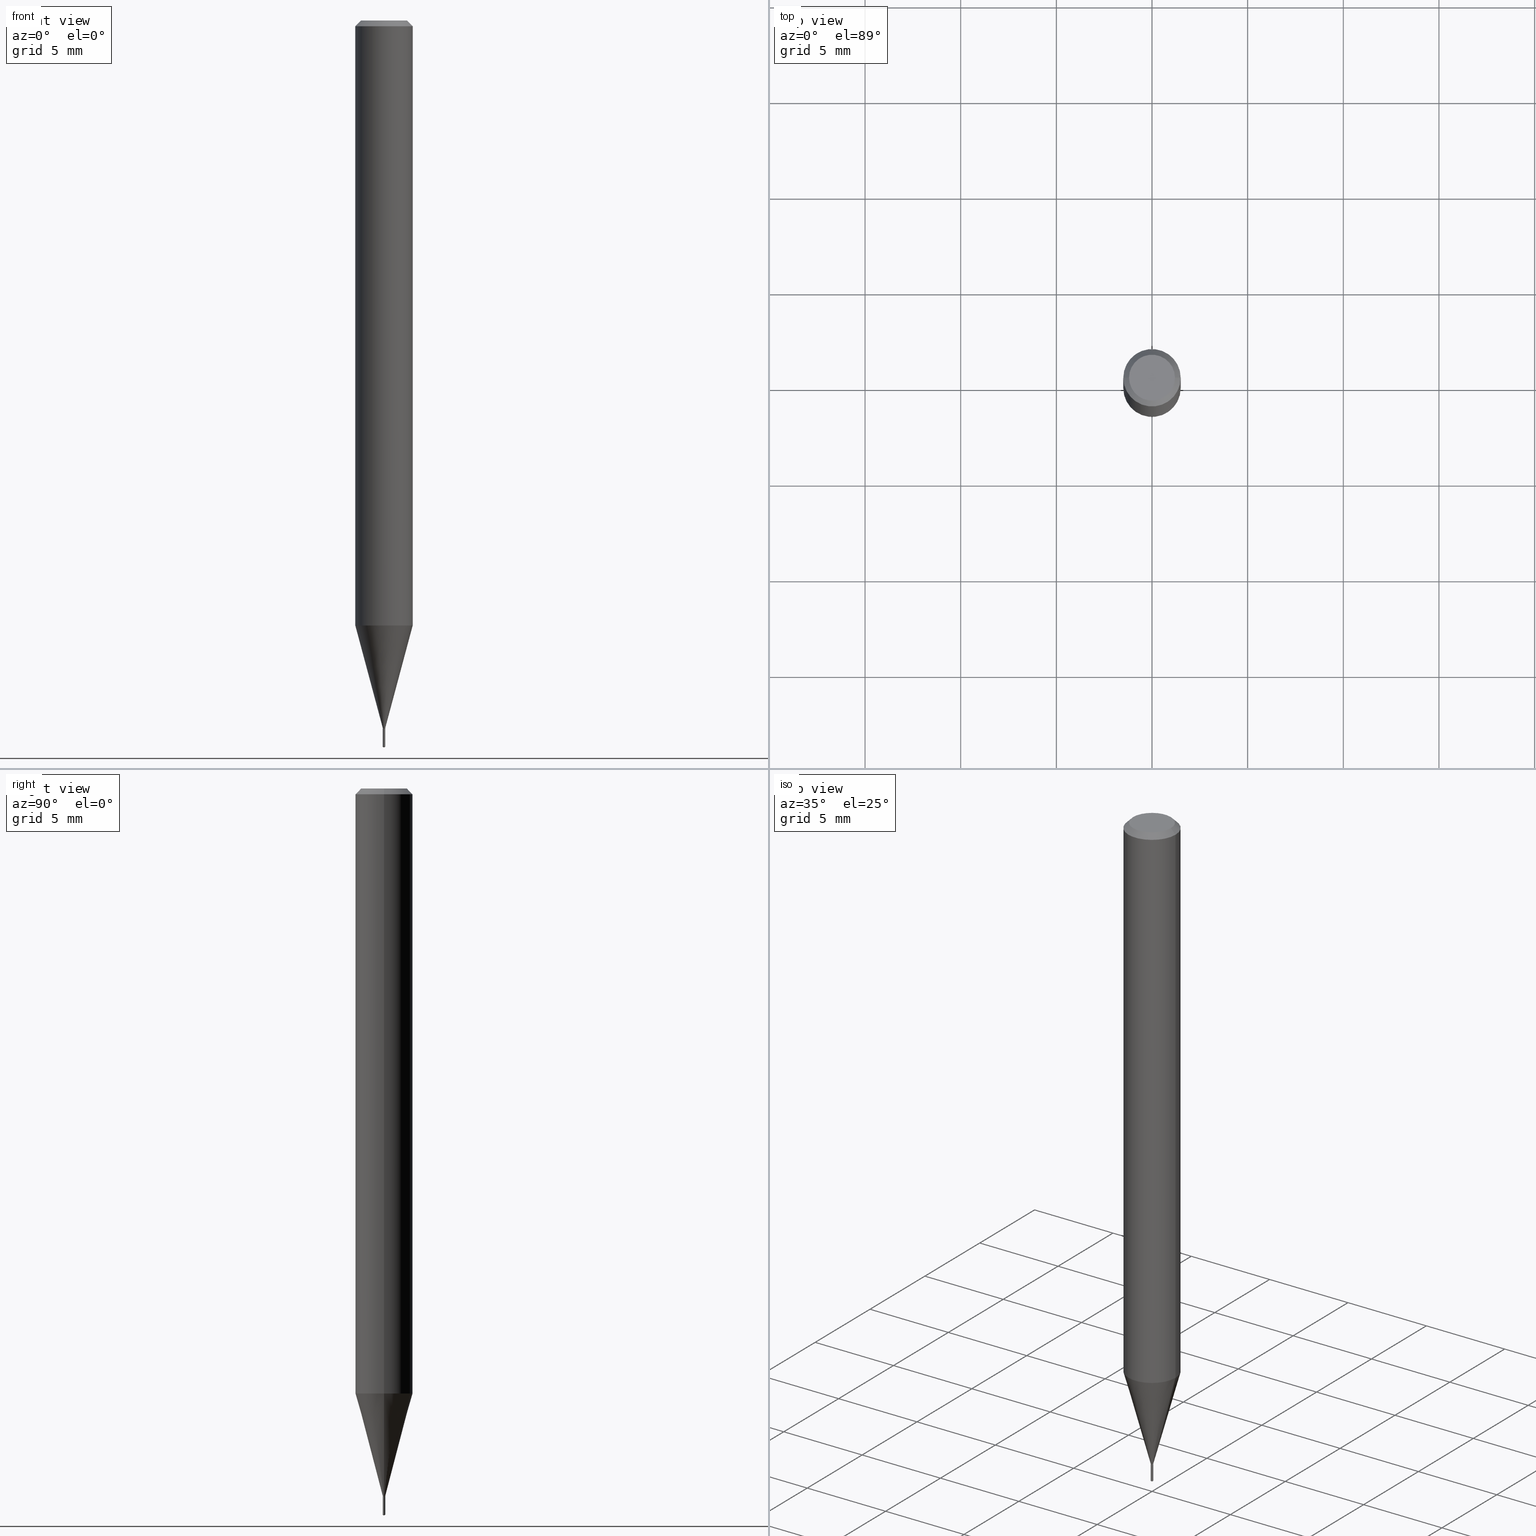
[diagram: canonical four-view strip — front | top / right | iso, engineering-drawing reading convention]
A machine part, canonical four-view strip (front | top / right | iso — engineering-drawing reading convention). The complete STEP part file that produces these views, byte-faithful:
ISO-10303-21;
HEADER;
FILE_DESCRIPTION (( 'STEP AP203' ),
    '1' );
FILE_NAME ('07732.STEP',
    '2024-04-24T01:53:04',
    ( '' ),
    ( '' ),
    'SwSTEP 2.0',
    'SolidWorks 2023',
    '' );
FILE_SCHEMA (( 'CONFIG_CONTROL_DESIGN' ));
ENDSEC;

DATA;
#1 = DIRECTION ( 'NONE',  ( -2.445468806185136597E-29, 3.491481338843145583E-15, 1.000000000000000000 ) ) ;
#2 = LINE ( 'NONE', #118, #388 ) ;
#3 = APPLICATION_CONTEXT ( 'configuration controlled 3d designs of mechanical parts and assemblies' ) ;
#4 = CARTESIAN_POINT ( 'NONE',  ( 1.811883976191911173E-17, 0.002549999999994782569, -1.494567805421479711 ) ) ;
#5 = ORIENTED_EDGE ( 'NONE', *, *, #488, .T. ) ;
#6 = CARTESIAN_POINT ( 'NONE',  ( -0.04724000000000000421, 3.504923541997677355E-16, -3.380025165670481712E-19 ) ) ;
#7 = AXIS2_PLACEMENT_3D ( 'NONE', #350, #198, #418 ) ;
#8 = CARTESIAN_POINT ( 'NONE',  ( 8.265746106709734507E-48, -1.180129479067563789E-33, -3.380025165646692144E-19 ) ) ;
#9 = EDGE_LOOP ( 'NONE', ( #239, #5, #415, #227 ) ) ;
#10 = DIRECTION ( 'NONE',  ( 1.000000000000000000, -6.982962677686274599E-15, 0.000000000000000000 ) ) ;
#11 = CARTESIAN_POINT ( 'NONE',  ( 0.002550000000000000183, -1.780655482809998043E-17, 1.243425077827963851E-31 ) ) ;
#12 = CARTESIAN_POINT ( 'NONE',  ( 3.560358034924940320E-29, -5.083247681221735251E-15, -1.455899999999999972 ) ) ;
#13 = AXIS2_PLACEMENT_3D ( 'NONE', #272, #275, #413 ) ;
#14 = CC_DESIGN_APPROVAL ( #107, ( #142 ) ) ;
#15 = EDGE_CURVE ( 'NONE', #244, #190, #345, .T. ) ;
#16 = SHAPE_DEFINITION_REPRESENTATION ( #309, #67 ) ;
#17 = DIRECTION ( 'NONE',  ( 6.090539988449873099E-15, 0.8571673007021272106, 0.5150380749100293976 ) ) ;
#18 = CC_DESIGN_PERSON_AND_ORGANIZATION_ASSIGNMENT ( #212, #140, ( #79 ) ) ;
#19 = APPROVAL_ROLE ( '' ) ;
#20 = PERSON_AND_ORGANIZATION ( #411, #170 ) ;
#21 = APPROVAL_DATE_TIME ( #135, #220 ) ;
#22 = DATE_TIME_ROLE ( 'classification_date' ) ;
#23 = APPLICATION_CONTEXT ( 'configuration controlled 3d designs of mechanical parts and assemblies' ) ;
#24 = AXIS2_PLACEMENT_3D ( 'NONE', #226, #343, #374 ) ;
#25 = AXIS2_PLACEMENT_3D ( 'NONE', #49, #206, #329 ) ;
#26 = DIRECTION ( 'NONE',  ( -2.445367826674842379E-29, 3.491625947249283675E-15, 1.000000000000000000 ) ) ;
#27 = CC_DESIGN_PERSON_AND_ORGANIZATION_ASSIGNMENT ( #264, #101, ( #142 ) ) ;
#28 = DIRECTION ( 'NONE',  ( 2.445468806185136597E-29, -3.491481338843145583E-15, -1.000000000000000000 ) ) ;
#29 = UNCERTAINTY_MEASURE_WITH_UNIT (LENGTH_MEASURE( 1.000000000000000082E-05 ), #47, 'distance_accuracy_value', 'NONE');
#30 = VERTEX_POINT ( 'NONE', #443 ) ;
#31 = LINE ( 'NONE', #11, #261 ) ;
#32 = FACE_OUTER_BOUND ( 'NONE', #308, .T. ) ;
#33 = EDGE_LOOP ( 'NONE', ( #213, #301 ) ) ;
#34 = CONICAL_SURFACE ( 'NONE', #209, 0.002050000000000000173, 0.7853981633975491983 ) ;
#35 = AXIS2_PLACEMENT_3D ( 'NONE', #315, #122, #283 ) ;
#36 = VERTEX_POINT ( 'NONE', #414 ) ;
#37 = ORIENTED_EDGE ( 'NONE', *, *, #70, .F. ) ;
#38 = DIMENSIONAL_EXPONENTS ( 1.000000000000000000, 0.000000000000000000, 0.000000000000000000, 0.000000000000000000, 0.000000000000000000, 0.000000000000000000, 0.000000000000000000 ) ;
#39 = DIRECTION ( 'NONE',  ( -2.445468806185136597E-29, 3.491481338843145583E-15, 1.000000000000000000 ) ) ;
#40 = EDGE_LOOP ( 'NONE', ( #300, #490, #119, #86 ) ) ;
#41 = DIRECTION ( 'NONE',  ( -2.445468806185136597E-29, 3.491481338843145583E-15, 1.000000000000000000 ) ) ;
#42 = ADVANCED_FACE ( 'NONE', ( #228 ), #463, .T. ) ;
#43 = AXIS2_PLACEMENT_3D ( 'NONE', #448, #26, #185 ) ;
#44 = VECTOR ( 'NONE', #399, 39.37007874015748143 ) ;
#45 = DIRECTION ( 'NONE',  ( 0.2588190451025211836, 1.565188264969622559E-15, 0.9659258262890679791 ) ) ;
#46 = DIRECTION ( 'NONE',  ( 1.000000000000000000, -6.982962677686274599E-15, 0.000000000000000000 ) ) ;
#47 =( CONVERSION_BASED_UNIT ( 'INCH', #392 ) LENGTH_UNIT ( ) NAMED_UNIT ( #38 ) );
#48 = ORIENTED_EDGE ( 'NONE', *, *, #139, .T. ) ;
#49 = CARTESIAN_POINT ( 'NONE',  ( 3.560358034924940320E-29, -5.083247681221735251E-15, -1.455899999999999972 ) ) ;
#50 = DIRECTION ( 'NONE',  ( -1.000000000000000000, 6.982962677686265922E-15, -4.876176775795935793E-29 ) ) ;
#51 = CARTESIAN_POINT ( 'NONE',  ( 0.002550000000000000183, -5.101054236049835376E-15, -1.455899999999999972 ) ) ;
#52 = ORIENTED_EDGE ( 'NONE', *, *, #355, .F. ) ;
#53 = EDGE_CURVE ( 'NONE', #188, #380, #108, .T. ) ;
#54 = FACE_OUTER_BOUND ( 'NONE', #33, .T. ) ;
#55 = CARTESIAN_POINT ( 'NONE',  ( -1.780655482806435843E-17, -0.002550000000005086392, -1.456699999999999884 ) ) ;
#56 = CIRCLE ( 'NONE', #245, 0.002550000000000000183 ) ;
#57 = APPROVAL_ROLE ( '' ) ;
#58 = ADVANCED_FACE ( 'NONE', ( #231 ), #408, .T. ) ;
#59 = COORDINATED_UNIVERSAL_TIME_OFFSET ( 5, 0, .BEHIND. ) ;
#60 = AXIS2_PLACEMENT_3D ( 'NONE', #116, #398, #46 ) ;
#61 = CIRCLE ( 'NONE', #465, 0.002550000000000000183 ) ;
#62 = LOCAL_TIME ( 21, 53, 4.000000000000000000, #257 ) ;
#63 = APPROVAL_DATE_TIME ( #472, #115 ) ;
#64 = ORIENTED_EDGE ( 'NONE', *, *, #167, .F. ) ;
#65 = DIRECTION ( 'NONE',  ( -2.445468806185136597E-29, 3.491481338843145583E-15, 1.000000000000000000 ) ) ;
#66 = VECTOR ( 'NONE', #149, 39.37007874015748854 ) ;
#67 = ADVANCED_BREP_SHAPE_REPRESENTATION ( '07732', ( #249, #230, #162 ), #98 ) ;
#68 = ORIENTED_EDGE ( 'NONE', *, *, #354, .F. ) ;
#69 = EDGE_LOOP ( 'NONE', ( #333, #450 ) ) ;
#70 = EDGE_CURVE ( 'NONE', #71, #151, #424, .T. ) ;
#71 = VERTEX_POINT ( 'NONE', #237 ) ;
#72 = FACE_OUTER_BOUND ( 'NONE', #155, .T. ) ;
#73 = ORIENTED_EDGE ( 'NONE', *, *, #232, .F. ) ;
#74 = DIRECTION ( 'NONE',  ( -2.445367826674842379E-29, 3.491625947249283675E-15, 1.000000000000000000 ) ) ;
#75 = ADVANCED_FACE ( 'NONE', ( #195 ), #161, .T. ) ;
#76 = CARTESIAN_POINT ( 'NONE',  ( 0.002550000000000000183, -5.101054236049835376E-15, -1.455899999999999972 ) ) ;
#77 = ORIENTED_EDGE ( 'NONE', *, *, #410, .F. ) ;
#78 = CONICAL_SURFACE ( 'NONE', #235, 0.05904999999999999832, 0.7853981633974452814 ) ;
#79 = SECURITY_CLASSIFICATION ( '', '', #439 ) ;
#80 = CARTESIAN_POINT ( 'NONE',  ( 2.888098660104664204E-31, -4.123439461173780263E-17, -0.01181000000000007218 ) ) ;
#81 = DIRECTION ( 'NONE',  ( -2.445367826674842379E-29, 3.491625947249283675E-15, 1.000000000000000000 ) ) ;
#82 = EDGE_LOOP ( 'NONE', ( #279, #387, #144, #317 ) ) ;
#83 = CC_DESIGN_DATE_AND_TIME_ASSIGNMENT ( #369, #22, ( #79 ) ) ;
#84 = DIRECTION ( 'NONE',  ( 1.000000000000000000, -6.982962677686274599E-15, 0.000000000000000000 ) ) ;
#85 = DIRECTION ( 'NONE',  ( -2.445367826674842379E-29, 3.491625947249283675E-15, 1.000000000000000000 ) ) ;
#86 = ORIENTED_EDGE ( 'NONE', *, *, #136, .F. ) ;
#87 = CC_DESIGN_PERSON_AND_ORGANIZATION_ASSIGNMENT ( #366, #262, ( #319 ) ) ;
#88 = DIRECTION ( 'NONE',  ( -2.445468806185136877E-29, 3.491481338843145188E-15, 1.000000000000000000 ) ) ;
#89 = FACE_OUTER_BOUND ( 'NONE', #312, .T. ) ;
#90 = AXIS2_PLACEMENT_3D ( 'NONE', #287, #94, #467 ) ;
#91 = CC_DESIGN_APPROVAL ( #220, ( #79 ) ) ;
#92 = ORIENTED_EDGE ( 'NONE', *, *, #473, .T. ) ;
#93 = EDGE_CURVE ( 'NONE', #482, #188, #2, .T. ) ;
#94 = DIRECTION ( 'NONE',  ( -2.445367826674842379E-29, 3.491625947249283675E-15, 1.000000000000000000 ) ) ;
#95 = DIRECTION ( 'NONE',  ( -2.438088387897960049E-29, 3.491481338843145188E-15, 1.000000000000000000 ) ) ;
#96 = CARTESIAN_POINT ( 'NONE',  ( 0.002050000000000000173, -5.100355939782067564E-15, -1.456699999999999884 ) ) ;
#97 = CIRCLE ( 'NONE', #476, 0.002050000000000000173 ) ;
#98 =( GEOMETRIC_REPRESENTATION_CONTEXT ( 3 ) GLOBAL_UNCERTAINTY_ASSIGNED_CONTEXT ( ( #29 ) ) GLOBAL_UNIT_ASSIGNED_CONTEXT ( ( #47, #430, #437 ) ) REPRESENTATION_CONTEXT ( 'NONE', 'WORKASPACE' ) );
#99 = DIRECTION ( 'NONE',  ( 1.000000000000000000, 0.000000000000000000, 0.000000000000000000 ) ) ;
#100 = CARTESIAN_POINT ( 'NONE',  ( 0.05905000000000015098, -4.759374832450481016E-15, -1.245039129372358166 ) ) ;
#101 = PERSON_AND_ORGANIZATION_ROLE ( 'creator' ) ;
#102 = CONICAL_SURFACE ( 'NONE', #7, 0.002050000000000000173, 0.7853981633975491983 ) ;
#103 = EDGE_CURVE ( 'NONE', #30, #359, #97, .T. ) ;
#104 = APPROVAL_ROLE ( '' ) ;
#105 = CARTESIAN_POINT ( 'NONE',  ( 3.560358034924940320E-29, -5.083247681221735251E-15, -1.455899999999999972 ) ) ;
#106 = DIRECTION ( 'NONE',  ( 1.000000000000000000, -6.982962677686266711E-15, 4.876176775795936353E-29 ) ) ;
#107 = APPROVAL ( #341, 'UNSPECIFIED' ) ;
#108 = LINE ( 'NONE', #265, #288 ) ;
#109 = DIRECTION ( 'NONE',  ( 0.7071067811865453523, -7.319954787623248157E-15, -0.7071067811865496822 ) ) ;
#110 = AXIS2_PLACEMENT_3D ( 'NONE', #80, #28, #379 ) ;
#111 = ORIENTED_EDGE ( 'NONE', *, *, #136, .T. ) ;
#112 = CIRCLE ( 'NONE', #390, 0.002550000000000000183 ) ;
#113 = ORIENTED_EDGE ( 'NONE', *, *, #139, .F. ) ;
#114 = CARTESIAN_POINT ( 'NONE',  ( 0.05904999999999999832, -4.463468013801466955E-16, -0.01181000000000007218 ) ) ;
#115 = APPROVAL ( #340, 'UNSPECIFIED' ) ;
#116 = CARTESIAN_POINT ( 'NONE',  ( 3.560358034924940320E-29, -5.083247681221735251E-15, -1.455899999999999972 ) ) ;
#117 = ORIENTED_EDGE ( 'NONE', *, *, #360, .T. ) ;
#118 = CARTESIAN_POINT ( 'NONE',  ( 3.658514805488231487E-29, -5.223821579679652522E-15, -1.496099999999999985 ) ) ;
#119 = ORIENTED_EDGE ( 'NONE', *, *, #217, .T. ) ;
#120 = VECTOR ( 'NONE', #489, 39.37007874015748143 ) ;
#121 = VECTOR ( 'NONE', #422, 39.37007874015748854 ) ;
#122 = DIRECTION ( 'NONE',  ( -2.445468806185136597E-29, 3.491481338843145583E-15, 1.000000000000000000 ) ) ;
#123 = VERTEX_POINT ( 'NONE', #441 ) ;
#124 = CARTESIAN_POINT ( 'NONE',  ( -0.05904999999999999832, -1.774557155006081039E-15, -0.01181000000000007218 ) ) ;
#125 = DIRECTION ( 'NONE',  ( 6.982962677686265922E-15, 1.000000000000000000, -3.491625947249283675E-15 ) ) ;
#126 = DIRECTION ( 'NONE',  ( 1.000000000000000000, -6.982962677686266711E-15, 4.876185090822587894E-29 ) ) ;
#127 = ADVANCED_FACE ( 'NONE', ( #32 ), #435, .T. ) ;
#128 = AXIS2_PLACEMENT_3D ( 'NONE', #385, #459, #285 ) ;
#129 = ORIENTED_EDGE ( 'NONE', *, *, #355, .T. ) ;
#130 = DIRECTION ( 'NONE',  ( -2.445367826674842379E-29, 3.491625947249283675E-15, 1.000000000000000000 ) ) ;
#131 = DIRECTION ( 'NONE',  ( 1.000000000000000000, -6.982962677686266711E-15, 4.876185090822587894E-29 ) ) ;
#132 = PERSON_AND_ORGANIZATION_ROLE ( 'design_supplier' ) ;
#133 = CLOSED_SHELL ( 'NONE', ( #177, #75, #150, #127, #306, #338, #196, #434, #293, #181, #246, #295 ) ) ;
#134 = CONICAL_SURFACE ( 'NONE', #90, 65.52281426577219747, 1.029744258676679847 ) ;
#135 = DATE_AND_TIME ( #363, #320 ) ;
#136 = EDGE_CURVE ( 'NONE', #172, #483, #307, .T. ) ;
#137 = APPROVAL_DATE_TIME ( #469, #107 ) ;
#138 = CALENDAR_DATE ( 2024, 23, 4 ) ;
#139 = EDGE_CURVE ( 'NONE', #269, #190, #179, .T. ) ;
#140 = PERSON_AND_ORGANIZATION_ROLE ( 'classification_officer' ) ;
#141 = CIRCLE ( 'NONE', #292, 0.04724000000000000421 ) ;
#142 = PRODUCT_DEFINITION_FORMATION_WITH_SPECIFIED_SOURCE ( 'ANY', '', #319, .NOT_KNOWN. ) ;
#143 = DIRECTION ( 'NONE',  ( -2.445367826674842379E-29, 3.491625947249283675E-15, 1.000000000000000000 ) ) ;
#144 = ORIENTED_EDGE ( 'NONE', *, *, #428, .F. ) ;
#145 = LINE ( 'NONE', #114, #416 ) ;
#146 = EDGE_LOOP ( 'NONE', ( #208, #258, #278 ) ) ;
#147 = EDGE_LOOP ( 'NONE', ( #154, #169, #458, #52 ) ) ;
#148 = DESIGN_CONTEXT ( 'detailed design', #23, 'design' ) ;
#149 = DIRECTION ( 'NONE',  ( 0.7071067811866187380, -2.468850131083003717E-15, 0.7071067811864760744 ) ) ;
#150 = ADVANCED_FACE ( 'NONE', ( #326 ), #429, .T. ) ;
#151 = VERTEX_POINT ( 'NONE', #100 ) ;
#152 = EDGE_CURVE ( 'NONE', #151, #71, #192, .T. ) ;
#153 = DIRECTION ( 'NONE',  ( 1.000000000000000000, -6.982962677686274599E-15, 0.000000000000000000 ) ) ;
#154 = ORIENTED_EDGE ( 'NONE', *, *, #152, .T. ) ;
#155 = EDGE_LOOP ( 'NONE', ( #347, #384, #111, #393 ) ) ;
#156 = CARTESIAN_POINT ( 'NONE',  ( 1.811883976191910865E-17, 0.002549999999994914408, -1.456699999999999884 ) ) ;
#157 = ORIENTED_EDGE ( 'NONE', *, *, #334, .F. ) ;
#158 = CARTESIAN_POINT ( 'NONE',  ( -0.002550000000000000183, -5.065652563660679960E-15, -1.455899999999999972 ) ) ;
#159 = CARTESIAN_POINT ( 'NONE',  ( 3.562314409969888354E-29, -5.086040866292809657E-15, -1.456699999999999884 ) ) ;
#160 = ORIENTED_EDGE ( 'NONE', *, *, #267, .T. ) ;
#161 = CONICAL_SURFACE ( 'NONE', #110, 0.05904999999999999832, 0.7853981633974452814 ) ;
#162 = AXIS2_PLACEMENT_3D ( 'NONE', #337, #433, #99 ) ;
#163 = CARTESIAN_POINT ( 'NONE',  ( 4.132873053354867254E-48, -5.900647395337818946E-34, -1.690012582823346072E-19 ) ) ;
#164 = DIRECTION ( 'NONE',  ( -6.982962677686266711E-15, -1.000000000000000000, 0.000000000000000000 ) ) ;
#165 = DIRECTION ( 'NONE',  ( 1.000000000000000000, -6.982962677686497847E-15, 0.000000000000000000 ) ) ;
#166 = CARTESIAN_POINT ( 'NONE',  ( 3.562314409969888354E-29, -5.086040866292809657E-15, -1.456699999999999884 ) ) ;
#167 = EDGE_CURVE ( 'NONE', #305, #269, #31, .T. ) ;
#168 = CARTESIAN_POINT ( 'NONE',  ( -0.002550000000000000183, -5.065128841459853114E-15, -1.455899999999999972 ) ) ;
#169 = ORIENTED_EDGE ( 'NONE', *, *, #410, .T. ) ;
#170 = ORGANIZATION ( 'UNSPECIFIED', 'UNSPECIFIED', '' ) ;
#171 = CARTESIAN_POINT ( 'NONE',  ( -0.05905000000000007465, 4.195754854663396902E-16, -2.904631170795525395E-30 ) ) ;
#172 = VERTEX_POINT ( 'NONE', #6 ) ;
#173 = CC_DESIGN_DATE_AND_TIME_ASSIGNMENT ( #216, #475, ( #205 ) ) ;
#174 = LINE ( 'NONE', #168, #318 ) ;
#175 = ORIENTED_EDGE ( 'NONE', *, *, #167, .T. ) ;
#176 = CARTESIAN_POINT ( 'NONE',  ( -0.002550000000000000183, -5.065652563660679960E-15, -1.456199999999999939 ) ) ;
#177 = ADVANCED_FACE ( 'NONE', ( #250 ), #34, .T. ) ;
#178 = MECHANICAL_CONTEXT ( 'NONE', #3, 'mechanical' ) ;
#179 = CIRCLE ( 'NONE', #60, 0.002550000000000000183 ) ;
#180 = APPLICATION_PROTOCOL_DEFINITION ( 'international standard', 'config_control_design', 1994, #23 ) ;
#181 = ADVANCED_FACE ( 'NONE', ( #89 ), #381, .F. ) ;
#182 = CONICAL_SURFACE ( 'NONE', #223, 0.002550000000000000183, 0.2617993877991499074 ) ;
#183 = LOCAL_TIME ( 21, 53, 4.000000000000000000, #401 ) ;
#184 = DIRECTION ( 'NONE',  ( 1.000000000000000000, -6.982962677686271444E-15, 0.000000000000000000 ) ) ;
#185 = DIRECTION ( 'NONE',  ( -6.982962677686266711E-15, -1.000000000000000000, 0.000000000000000000 ) ) ;
#186 = EDGE_LOOP ( 'NONE', ( #229, #241, #405, #37 ) ) ;
#187 = CARTESIAN_POINT ( 'NONE',  ( 3.654915123014358292E-29, -5.218261078267836103E-15, -1.494567805421479711 ) ) ;
#188 = VERTEX_POINT ( 'NONE', #361 ) ;
#189 = DIRECTION ( 'NONE',  ( -2.445468806185136597E-29, 3.491481338843145583E-15, 1.000000000000000000 ) ) ;
#190 = VERTEX_POINT ( 'NONE', #158 ) ;
#191 = FACE_OUTER_BOUND ( 'NONE', #419, .T. ) ;
#192 = CIRCLE ( 'NONE', #221, 0.05905000000000015098 ) ;
#193 = ORIENTED_EDGE ( 'NONE', *, *, #376, .T. ) ;
#194 = AXIS2_PLACEMENT_3D ( 'NONE', #159, #253, #199 ) ;
#195 = FACE_OUTER_BOUND ( 'NONE', #40, .T. ) ;
#196 = ADVANCED_FACE ( 'NONE', ( #323 ), #182, .T. ) ;
#197 = ORIENTED_EDGE ( 'NONE', *, *, #93, .T. ) ;
#198 = DIRECTION ( 'NONE',  ( -2.445468806185136597E-29, 3.491481338843145583E-15, 1.000000000000000000 ) ) ;
#199 = DIRECTION ( 'NONE',  ( -6.982962677686266711E-15, -1.000000000000000000, 0.000000000000000000 ) ) ;
#200 = ORIENTED_EDGE ( 'NONE', *, *, #225, .T. ) ;
#201 = CIRCLE ( 'NONE', #25, 0.002550000000000000183 ) ;
#202 = CARTESIAN_POINT ( 'NONE',  ( 3.658811578925050252E-29, -5.223400277549209917E-15, -1.496099999999999985 ) ) ;
#203 = DIRECTION ( 'NONE',  ( -2.445468806185136597E-29, 3.491481338843145583E-15, 1.000000000000000000 ) ) ;
#204 = LINE ( 'NONE', #171, #44 ) ;
#205 = PRODUCT_DEFINITION ( 'UNKNOWN', '', #142, #148 ) ;
#206 = DIRECTION ( 'NONE',  ( -2.445468806185136597E-29, 3.491481338843145583E-15, 1.000000000000000000 ) ) ;
#207 = CARTESIAN_POINT ( 'NONE',  ( 3.561091675566795553E-29, -5.084295125623388153E-15, -1.456199999999999939 ) ) ;
#208 = ORIENTED_EDGE ( 'NONE', *, *, #93, .F. ) ;
#209 = AXIS2_PLACEMENT_3D ( 'NONE', #236, #242, #165 ) ;
#210 = AXIS2_PLACEMENT_3D ( 'NONE', #248, #425, #10 ) ;
#211 = CC_DESIGN_SECURITY_CLASSIFICATION ( #79, ( #142 ) ) ;
#212 = PERSON_AND_ORGANIZATION ( #411, #170 ) ;
#213 = ORIENTED_EDGE ( 'NONE', *, *, #428, .T. ) ;
#214 = DIRECTION ( 'NONE',  ( -0.2588190451025211836, 5.211531920934547886E-15, 0.9659258262890679791 ) ) ;
#215 = COORDINATED_UNIVERSAL_TIME_OFFSET ( 5, 0, .BEHIND. ) ;
#216 = DATE_AND_TIME ( #138, #183 ) ;
#217 = EDGE_CURVE ( 'NONE', #36, #483, #303, .T. ) ;
#218 = APPROVAL_STATUS ( 'not_yet_approved' ) ;
#219 = CALENDAR_DATE ( 2024, 23, 4 ) ;
#220 = APPROVAL ( #218, 'UNSPECIFIED' ) ;
#221 = AXIS2_PLACEMENT_3D ( 'NONE', #440, #189, #184 ) ;
#222 = DIRECTION ( 'NONE',  ( -6.982962677686265133E-15, -1.000000000000000000, 3.468864327941395027E-15 ) ) ;
#223 = AXIS2_PLACEMENT_3D ( 'NONE', #12, #1, #84 ) ;
#224 = LOCAL_TIME ( 21, 53, 4.000000000000000000, #215 ) ;
#225 = EDGE_CURVE ( 'NONE', #190, #71, #174, .T. ) ;
#226 = CARTESIAN_POINT ( 'NONE',  ( 3.044704353360002545E-29, -4.347030886333105307E-15, -1.245039129372358166 ) ) ;
#227 = ORIENTED_EDGE ( 'NONE', *, *, #290, .F. ) ;
#228 = FACE_OUTER_BOUND ( 'NONE', #146, .T. ) ;
#229 = ORIENTED_EDGE ( 'NONE', *, *, #225, .F. ) ;
#230 = MANIFOLD_SOLID_BREP ( 'Body-Move/Copy2[2]', #133 ) ;
#231 = FACE_OUTER_BOUND ( 'NONE', #82, .T. ) ;
#232 = EDGE_CURVE ( 'NONE', #482, #378, #365, .T. ) ;
#233 = CARTESIAN_POINT ( 'NONE',  ( 2.888098660104664204E-31, -4.123439461173780263E-17, -0.01181000000000007218 ) ) ;
#234 = EDGE_LOOP ( 'NONE', ( #157, #160, #487, #445 ) ) ;
#235 = AXIS2_PLACEMENT_3D ( 'NONE', #233, #454, #281 ) ;
#236 = CARTESIAN_POINT ( 'NONE',  ( 3.562314409969888354E-29, -5.086040866292809657E-15, -1.456699999999999884 ) ) ;
#237 = CARTESIAN_POINT ( 'NONE',  ( -0.05905000000000015098, -3.927455400866765814E-15, -1.245039129372358166 ) ) ;
#238 = FACE_OUTER_BOUND ( 'NONE', #373, .T. ) ;
#239 = ORIENTED_EDGE ( 'NONE', *, *, #346, .T. ) ;
#240 = CYLINDRICAL_SURFACE ( 'NONE', #328, 0.05905000000000007465 ) ;
#241 = ORIENTED_EDGE ( 'NONE', *, *, #247, .T. ) ;
#242 = DIRECTION ( 'NONE',  ( -2.445468806185136597E-29, 3.491481338843145583E-15, 1.000000000000000000 ) ) ;
#243 =( LENGTH_UNIT ( ) NAMED_UNIT ( * ) SI_UNIT ( $, .METRE. ) );
#244 = VERTEX_POINT ( 'NONE', #176 ) ;
#245 = AXIS2_PLACEMENT_3D ( 'NONE', #324, #321, #461 ) ;
#246 = ADVANCED_FACE ( 'NONE', ( #322 ), #325, .F. ) ;
#247 = EDGE_CURVE ( 'NONE', #190, #269, #201, .T. ) ;
#248 = CARTESIAN_POINT ( 'NONE',  ( 3.561091675566795553E-29, -5.084295125623388153E-15, -1.456199999999999939 ) ) ;
#249 = MANIFOLD_SOLID_BREP ( 'Body-Move/Copy2[1]', #268 ) ;
#250 = FACE_OUTER_BOUND ( 'NONE', #9, .T. ) ;
#251 = CARTESIAN_POINT ( 'NONE',  ( 0.000000000000000000, 0.000000000000000000, 0.000000000000000000 ) ) ;
#252 = CYLINDRICAL_SURFACE ( 'NONE', #194, 0.002550000000000000183 ) ;
#253 = DIRECTION ( 'NONE',  ( -2.445367826674842379E-29, 3.491625947249283675E-15, 1.000000000000000000 ) ) ;
#254 = DIRECTION ( 'NONE',  ( 2.445367826674842099E-29, -3.491625947249283675E-15, -1.000000000000000000 ) ) ;
#255 = VECTOR ( 'NONE', #17, 39.37007874015748854 ) ;
#256 = DIRECTION ( 'NONE',  ( -2.445468806185136597E-29, 3.491481338843145583E-15, 1.000000000000000000 ) ) ;
#257 = COORDINATED_UNIVERSAL_TIME_OFFSET ( 5, 0, .BEHIND. ) ;
#258 = ORIENTED_EDGE ( 'NONE', *, *, #232, .T. ) ;
#259 = ADVANCED_FACE ( 'NONE', ( #54 ), #471, .F. ) ;
#260 = APPLICATION_PROTOCOL_DEFINITION ( 'international standard', 'config_control_design', 1994, #3 ) ;
#261 = VECTOR ( 'NONE', #88, 39.37007874015748143 ) ;
#262 = PERSON_AND_ORGANIZATION_ROLE ( 'design_owner' ) ;
#263 = CC_DESIGN_APPROVAL ( #115, ( #205 ) ) ;
#264 = PERSON_AND_ORGANIZATION ( #411, #170 ) ;
#265 = CARTESIAN_POINT ( 'NONE',  ( -1.780655482806435843E-17, -0.002550000000005086392, -1.456699999999999884 ) ) ;
#266 = DIRECTION ( 'NONE',  ( 1.000000000000000000, -6.982962677686266711E-15, 4.876176775795936353E-29 ) ) ;
#267 = EDGE_CURVE ( 'NONE', #378, #188, #426, .T. ) ;
#268 = CLOSED_SHELL ( 'NONE', ( #58, #42, #370, #397, #259 ) ) ;
#269 = VERTEX_POINT ( 'NONE', #76 ) ;
#270 = AXIS2_PLACEMENT_3D ( 'NONE', #394, #95, #423 ) ;
#271 = APPROVAL_PERSON_ORGANIZATION ( #296, #220, #104 ) ;
#272 = CARTESIAN_POINT ( 'NONE',  ( 3.562314409969888354E-29, -5.086040866292809657E-15, -1.456699999999999884 ) ) ;
#273 = ORIENTED_EDGE ( 'NONE', *, *, #15, .T. ) ;
#274 = DIRECTION ( 'NONE',  ( -5.985567269336035154E-15, -0.8571673007021235469, 0.5150380749100353928 ) ) ;
#275 = DIRECTION ( 'NONE',  ( -2.445468806185136597E-29, 3.491481338843145583E-15, 1.000000000000000000 ) ) ;
#276 = ORIENTED_EDGE ( 'NONE', *, *, #360, .F. ) ;
#277 = EDGE_CURVE ( 'NONE', #188, #378, #61, .T. ) ;
#278 = ORIENTED_EDGE ( 'NONE', *, *, #277, .F. ) ;
#279 = ORIENTED_EDGE ( 'NONE', *, *, #277, .T. ) ;
#280 = CARTESIAN_POINT ( 'NONE',  ( -0.05904999999999999832, 3.711095515056362547E-16, -0.01181000000000007218 ) ) ;
#281 = DIRECTION ( 'NONE',  ( -1.000000000000000000, 6.982962677686266711E-15, 0.000000000000000000 ) ) ;
#282 = ORIENTED_EDGE ( 'NONE', *, *, #70, .T. ) ;
#283 = DIRECTION ( 'NONE',  ( 1.000000000000000000, -6.982962677686266711E-15, 0.000000000000000000 ) ) ;
#284 = VERTEX_POINT ( 'NONE', #156 ) ;
#285 = DIRECTION ( 'NONE',  ( 1.000000000000000000, -6.982962677686266711E-15, 0.000000000000000000 ) ) ;
#286 = LINE ( 'NONE', #396, #121 ) ;
#287 = CARTESIAN_POINT ( 'NONE',  ( -9.261566198249544192E-28, 1.322419775457668072E-13, 37.87397874015748300 ) ) ;
#288 = VECTOR ( 'NONE', #74, 39.37007874015748143 ) ;
#289 = CIRCLE ( 'NONE', #13, 0.002050000000000000173 ) ;
#290 = EDGE_CURVE ( 'NONE', #359, #305, #311, .T. ) ;
#291 = DIRECTION ( 'NONE',  ( -2.445468806185136597E-29, 3.491481338843145583E-15, 1.000000000000000000 ) ) ;
#292 = AXIS2_PLACEMENT_3D ( 'NONE', #358, #41, #131 ) ;
#293 = ADVANCED_FACE ( 'NONE', ( #72 ), #78, .T. ) ;
#294 = DIRECTION ( 'NONE',  ( 1.000000000000000000, -6.982962677686266711E-15, 4.876176775795936353E-29 ) ) ;
#295 = ADVANCED_FACE ( 'NONE', ( #191 ), #102, .T. ) ;
#296 = PERSON_AND_ORGANIZATION ( #411, #170 ) ;
#297 = APPROVAL_PERSON_ORGANIZATION ( #468, #107, #57 ) ;
#298 = DIRECTION ( 'NONE',  ( -2.445468806185136597E-29, 3.491481338843145583E-15, 1.000000000000000000 ) ) ;
#299 = CYLINDRICAL_SURFACE ( 'NONE', #470, 0.002550000000000000183 ) ;
#300 = ORIENTED_EDGE ( 'NONE', *, *, #473, .F. ) ;
#301 = ORIENTED_EDGE ( 'NONE', *, *, #479, .T. ) ;
#302 = ORIENTED_EDGE ( 'NONE', *, *, #488, .F. ) ;
#303 = CIRCLE ( 'NONE', #128, 0.05904999999999999832 ) ;
#304 = LINE ( 'NONE', #478, #400 ) ;
#305 = VERTEX_POINT ( 'NONE', #481 ) ;
#306 = ADVANCED_FACE ( 'NONE', ( #238 ), #383, .T. ) ;
#307 = LINE ( 'NONE', #280, #371 ) ;
#308 = EDGE_LOOP ( 'NONE', ( #48, #200, #409, #68 ) ) ;
#309 = PRODUCT_DEFINITION_SHAPE ( 'NONE', 'NONE',  #205 ) ;
#310 = CARTESIAN_POINT ( 'NONE',  ( -0.002550000000000000183, 1.811883976188255604E-17, -1.254328448015001064E-31 ) ) ;
#311 = LINE ( 'NONE', #344, #66 ) ;
#312 = EDGE_LOOP ( 'NONE', ( #193, #92 ) ) ;
#313 = CC_DESIGN_PERSON_AND_ORGANIZATION_ASSIGNMENT ( #20, #132, ( #142 ) ) ;
#314 = AXIS2_PLACEMENT_3D ( 'NONE', #453, #352, #222 ) ;
#315 = CARTESIAN_POINT ( 'NONE',  ( 2.888098660104664204E-31, -4.123439461173780263E-17, -0.01181000000000007218 ) ) ;
#316 = AXIS2_PLACEMENT_3D ( 'NONE', #8, #203, #126 ) ;
#317 = ORIENTED_EDGE ( 'NONE', *, *, #53, .F. ) ;
#318 = VECTOR ( 'NONE', #214, 39.37007874015748854 ) ;
#319 = PRODUCT ( '07732', '07732', '', ( #178 ) ) ;
#320 = LOCAL_TIME ( 21, 53, 4.000000000000000000, #368 ) ;
#321 = DIRECTION ( 'NONE',  ( -2.445367826674842379E-29, 3.491625947249283675E-15, 1.000000000000000000 ) ) ;
#322 = FACE_OUTER_BOUND ( 'NONE', #69, .T. ) ;
#323 = FACE_OUTER_BOUND ( 'NONE', #186, .T. ) ;
#324 = CARTESIAN_POINT ( 'NONE',  ( 3.562314409969888354E-29, -5.086040866292809657E-15, -1.456699999999999884 ) ) ;
#325 = PLANE ( 'NONE',  #270 ) ;
#326 = FACE_OUTER_BOUND ( 'NONE', #147, .T. ) ;
#327 = FACE_OUTER_BOUND ( 'NONE', #364, .T. ) ;
#328 = AXIS2_PLACEMENT_3D ( 'NONE', #389, #291, #356 ) ;
#329 = DIRECTION ( 'NONE',  ( 1.000000000000000000, -6.982962677686274599E-15, 0.000000000000000000 ) ) ;
#330 = DIRECTION ( 'NONE',  ( -2.445468806185136877E-29, 3.491481338843145188E-15, 1.000000000000000000 ) ) ;
#331 = ORIENTED_EDGE ( 'NONE', *, *, #103, .T. ) ;
#332 = PERSON_AND_ORGANIZATION ( #411, #170 ) ;
#333 = ORIENTED_EDGE ( 'NONE', *, *, #346, .F. ) ;
#334 = EDGE_CURVE ( 'NONE', #378, #284, #304, .T. ) ;
#335 = CALENDAR_DATE ( 2024, 23, 4 ) ;
#336 = CIRCLE ( 'NONE', #35, 0.05904999999999999832 ) ;
#337 = CARTESIAN_POINT ( 'NONE',  ( 0.000000000000000000, 0.000000000000000000, 0.000000000000000000 ) ) ;
#338 = ADVANCED_FACE ( 'NONE', ( #449 ), #299, .T. ) ;
#339 = EDGE_CURVE ( 'NONE', #123, #36, #145, .T. ) ;
#340 = APPROVAL_STATUS ( 'not_yet_approved' ) ;
#341 = APPROVAL_STATUS ( 'not_yet_approved' ) ;
#342 = AXIS2_PLACEMENT_3D ( 'NONE', #391, #254, #125 ) ;
#343 = DIRECTION ( 'NONE',  ( -2.445468806185136597E-29, 3.491481338843145583E-15, 1.000000000000000000 ) ) ;
#344 = CARTESIAN_POINT ( 'NONE',  ( 0.002050000000000000173, -5.100355939782067564E-15, -1.456699999999999884 ) ) ;
#345 = LINE ( 'NONE', #310, #120 ) ;
#346 = EDGE_CURVE ( 'NONE', #359, #30, #289, .T. ) ;
#347 = ORIENTED_EDGE ( 'NONE', *, *, #339, .F. ) ;
#348 = AXIS2_PLACEMENT_3D ( 'NONE', #251, #256, #294 ) ;
#349 = DIRECTION ( 'NONE',  ( 1.000000000000000000, -6.982962677686497847E-15, 0.000000000000000000 ) ) ;
#350 = CARTESIAN_POINT ( 'NONE',  ( 3.562314409969888354E-29, -5.086040866292809657E-15, -1.456699999999999884 ) ) ;
#351 = CC_DESIGN_PERSON_AND_ORGANIZATION_ASSIGNMENT ( #367, #474, ( #205 ) ) ;
#352 = DIRECTION ( 'NONE',  ( -2.445367826674842379E-29, 3.491625947249283675E-15, 1.000000000000000000 ) ) ;
#353 = CARTESIAN_POINT ( 'NONE',  ( 0.05905000000000007465, -4.123439461173745750E-16, 2.879382386107504074E-30 ) ) ;
#354 = EDGE_CURVE ( 'NONE', #269, #151, #432, .T. ) ;
#355 = EDGE_CURVE ( 'NONE', #151, #36, #464, .T. ) ;
#356 = DIRECTION ( 'NONE',  ( 1.000000000000000000, -6.982962677686266711E-15, 4.876176775795936353E-29 ) ) ;
#357 = VECTOR ( 'NONE', #45, 39.37007874015748854 ) ;
#358 = CARTESIAN_POINT ( 'NONE',  ( 8.265746106709734507E-48, -1.180129479067563789E-33, -3.380025165646692144E-19 ) ) ;
#359 = VERTEX_POINT ( 'NONE', #96 ) ;
#360 = EDGE_CURVE ( 'NONE', #244, #305, #484, .T. ) ;
#361 = CARTESIAN_POINT ( 'NONE',  ( -1.780655482806343707E-17, -0.002550000000005219532, -1.494567805421479711 ) ) ;
#362 = DIRECTION ( 'NONE',  ( -2.445468806185136597E-29, 3.491481338843145583E-15, 1.000000000000000000 ) ) ;
#363 = CALENDAR_DATE ( 2024, 23, 4 ) ;
#364 = EDGE_LOOP ( 'NONE', ( #77, #282, #129, #455 ) ) ;
#365 = LINE ( 'NONE', #202, #255 ) ;
#366 = PERSON_AND_ORGANIZATION ( #411, #170 ) ;
#367 = PERSON_AND_ORGANIZATION ( #411, #170 ) ;
#368 = COORDINATED_UNIVERSAL_TIME_OFFSET ( 5, 0, .BEHIND. ) ;
#369 = DATE_AND_TIME ( #219, #427 ) ;
#370 = ADVANCED_FACE ( 'NONE', ( #386 ), #134, .T. ) ;
#371 = VECTOR ( 'NONE', #451, 39.37007874015748143 ) ;
#372 = ORIENTED_EDGE ( 'NONE', *, *, #247, .F. ) ;
#373 = EDGE_LOOP ( 'NONE', ( #382, #273, #113, #64 ) ) ;
#374 = DIRECTION ( 'NONE',  ( 1.000000000000000000, -6.982962677686271444E-15, 0.000000000000000000 ) ) ;
#375 = EDGE_LOOP ( 'NONE', ( #462, #117, #175, #372 ) ) ;
#376 = EDGE_CURVE ( 'NONE', #172, #123, #141, .T. ) ;
#377 = ORIENTED_EDGE ( 'NONE', *, *, #267, .F. ) ;
#378 = VERTEX_POINT ( 'NONE', #4 ) ;
#379 = DIRECTION ( 'NONE',  ( -1.000000000000000000, 6.982962677686266711E-15, 0.000000000000000000 ) ) ;
#380 = VERTEX_POINT ( 'NONE', #55 ) ;
#381 = PLANE ( 'NONE',  #446 ) ;
#382 = ORIENTED_EDGE ( 'NONE', *, *, #403, .T. ) ;
#383 = CYLINDRICAL_SURFACE ( 'NONE', #456, 0.002550000000000000183 ) ;
#384 = ORIENTED_EDGE ( 'NONE', *, *, #376, .F. ) ;
#385 = CARTESIAN_POINT ( 'NONE',  ( 2.888098660104664204E-31, -4.123439461173780263E-17, -0.01181000000000007218 ) ) ;
#386 = FACE_OUTER_BOUND ( 'NONE', #480, .T. ) ;
#387 = ORIENTED_EDGE ( 'NONE', *, *, #334, .T. ) ;
#388 = VECTOR ( 'NONE', #274, 39.37007874015748143 ) ;
#389 = CARTESIAN_POINT ( 'NONE',  ( 0.000000000000000000, 0.000000000000000000, 0.000000000000000000 ) ) ;
#390 = AXIS2_PLACEMENT_3D ( 'NONE', #166, #85, #164 ) ;
#391 = CARTESIAN_POINT ( 'NONE',  ( 3.562314409969888354E-29, -5.086040866292809657E-15, -1.456699999999999884 ) ) ;
#392 = LENGTH_MEASURE_WITH_UNIT ( LENGTH_MEASURE( 0.02539999999999999897 ), #243 );
#393 = ORIENTED_EDGE ( 'NONE', *, *, #417, .T. ) ;
#394 = CARTESIAN_POINT ( 'NONE',  ( 3.562314409969888354E-29, -5.086040866292809657E-15, -1.456699999999999884 ) ) ;
#395 = DIRECTION ( 'NONE',  ( 2.438088387897960049E-29, -3.491481338843145188E-15, -1.000000000000000000 ) ) ;
#396 = CARTESIAN_POINT ( 'NONE',  ( -0.002050000000000000173, -5.071474740209727629E-15, -1.456699999999999884 ) ) ;
#397 = ADVANCED_FACE ( 'NONE', ( #420 ), #252, .T. ) ;
#398 = DIRECTION ( 'NONE',  ( -2.445468806185136597E-29, 3.491481338843145583E-15, 1.000000000000000000 ) ) ;
#399 = DIRECTION ( 'NONE',  ( -2.445468806185136877E-29, 3.491481338843145188E-15, 1.000000000000000000 ) ) ;
#400 = VECTOR ( 'NONE', #143, 39.37007874015748143 ) ;
#401 = COORDINATED_UNIVERSAL_TIME_OFFSET ( 5, 0, .BEHIND. ) ;
#402 = AXIS2_PLACEMENT_3D ( 'NONE', #207, #362, #457 ) ;
#403 = EDGE_CURVE ( 'NONE', #305, #244, #407, .T. ) ;
#404 = CALENDAR_DATE ( 2024, 23, 4 ) ;
#405 = ORIENTED_EDGE ( 'NONE', *, *, #354, .T. ) ;
#406 = AXIS2_PLACEMENT_3D ( 'NONE', #105, #485, #153 ) ;
#407 = CIRCLE ( 'NONE', #402, 0.002550000000000000183 ) ;
#408 = CYLINDRICAL_SURFACE ( 'NONE', #43, 0.002550000000000000183 ) ;
#409 = ORIENTED_EDGE ( 'NONE', *, *, #152, .F. ) ;
#410 = EDGE_CURVE ( 'NONE', #71, #483, #204, .T. ) ;
#411 = PERSON ( 'UNSPECIFIED', 'UNSPECIFIED', 'UNSPECIFIED', ('UNSPECIFIED'), ('UNSPECIFIED'), ('UNSPECIFIED') ) ;
#412 = CARTESIAN_POINT ( 'NONE',  ( 3.562314409969888354E-29, -5.086040866292809657E-15, -1.456699999999999884 ) ) ;
#413 = DIRECTION ( 'NONE',  ( 1.000000000000000000, -6.982962677686497847E-15, 0.000000000000000000 ) ) ;
#414 = CARTESIAN_POINT ( 'NONE',  ( 0.05904999999999999832, -4.535783407291118600E-16, -0.01181000000000007218 ) ) ;
#415 = ORIENTED_EDGE ( 'NONE', *, *, #403, .F. ) ;
#416 = VECTOR ( 'NONE', #109, 39.37007874015748143 ) ;
#417 = EDGE_CURVE ( 'NONE', #483, #36, #336, .T. ) ;
#418 = DIRECTION ( 'NONE',  ( 1.000000000000000000, -6.982962677686497847E-15, 0.000000000000000000 ) ) ;
#419 = EDGE_LOOP ( 'NONE', ( #302, #331, #452, #276 ) ) ;
#420 = FACE_OUTER_BOUND ( 'NONE', #234, .T. ) ;
#421 = PRODUCT_RELATED_PRODUCT_CATEGORY ( 'detail', '', ( #319 ) ) ;
#422 = DIRECTION ( 'NONE',  ( -0.7071067811866187380, 7.493145998870611329E-15, 0.7071067811864760744 ) ) ;
#423 = DIRECTION ( 'NONE',  ( 1.000000000000000000, -6.982962677686265922E-15, 4.876176775795935793E-29 ) ) ;
#424 = CIRCLE ( 'NONE', #24, 0.05905000000000015098 ) ;
#425 = DIRECTION ( 'NONE',  ( -2.445468806185136597E-29, 3.491481338843145583E-15, 1.000000000000000000 ) ) ;
#426 = CIRCLE ( 'NONE', #438, 0.002550000000000000183 ) ;
#427 = LOCAL_TIME ( 21, 53, 4.000000000000000000, #59 ) ;
#428 = EDGE_CURVE ( 'NONE', #380, #284, #112, .T. ) ;
#429 = CYLINDRICAL_SURFACE ( 'NONE', #348, 0.05905000000000007465 ) ;
#430 =( NAMED_UNIT ( * ) PLANE_ANGLE_UNIT ( ) SI_UNIT ( $, .RADIAN. ) );
#431 = DIRECTION ( 'NONE',  ( -6.982962677686266711E-15, -1.000000000000000000, 0.000000000000000000 ) ) ;
#432 = LINE ( 'NONE', #51, #357 ) ;
#433 = DIRECTION ( 'NONE',  ( 0.000000000000000000, 0.000000000000000000, 1.000000000000000000 ) ) ;
#434 = ADVANCED_FACE ( 'NONE', ( #327 ), #240, .T. ) ;
#435 = CONICAL_SURFACE ( 'NONE', #406, 0.002550000000000000183, 0.2617993877991499074 ) ;
#436 = APPROVAL_PERSON_ORGANIZATION ( #332, #115, #19 ) ;
#437 =( NAMED_UNIT ( * ) SI_UNIT ( $, .STERADIAN. ) SOLID_ANGLE_UNIT ( ) );
#438 = AXIS2_PLACEMENT_3D ( 'NONE', #466, #130, #431 ) ;
#439 = SECURITY_CLASSIFICATION_LEVEL ( 'unclassified' ) ;
#440 = CARTESIAN_POINT ( 'NONE',  ( 3.044704353360002545E-29, -4.347030886333105307E-15, -1.245039129372358166 ) ) ;
#441 = CARTESIAN_POINT ( 'NONE',  ( 0.04724000000000000421, -3.852183633974369345E-16, -3.380025165621689721E-19 ) ) ;
#442 = CARTESIAN_POINT ( 'NONE',  ( 0.000000000000000000, 0.000000000000000000, 0.000000000000000000 ) ) ;
#443 = CARTESIAN_POINT ( 'NONE',  ( -0.002050000000000000173, -5.068825513035616428E-15, -1.456699999999999884 ) ) ;
#444 = DIRECTION ( 'NONE',  ( -6.982962677686266711E-15, -1.000000000000000000, 0.000000000000000000 ) ) ;
#445 = ORIENTED_EDGE ( 'NONE', *, *, #479, .F. ) ;
#446 = AXIS2_PLACEMENT_3D ( 'NONE', #163, #395, #50 ) ;
#447 = CIRCLE ( 'NONE', #316, 0.04724000000000000421 ) ;
#448 = CARTESIAN_POINT ( 'NONE',  ( 3.562314409969888354E-29, -5.086040866292809657E-15, -1.456699999999999884 ) ) ;
#449 = FACE_OUTER_BOUND ( 'NONE', #375, .T. ) ;
#450 = ORIENTED_EDGE ( 'NONE', *, *, #103, .F. ) ;
#451 = DIRECTION ( 'NONE',  ( -0.7071067811865453523, 2.468850131082234184E-15, -0.7071067811865496822 ) ) ;
#452 = ORIENTED_EDGE ( 'NONE', *, *, #290, .T. ) ;
#453 = CARTESIAN_POINT ( 'NONE',  ( -9.261566198249544192E-28, 1.322419775457668072E-13, 37.87397874015748300 ) ) ;
#454 = DIRECTION ( 'NONE',  ( 2.445468806185136597E-29, -3.491481338843145583E-15, -1.000000000000000000 ) ) ;
#455 = ORIENTED_EDGE ( 'NONE', *, *, #417, .F. ) ;
#456 = AXIS2_PLACEMENT_3D ( 'NONE', #486, #39, #106 ) ;
#457 = DIRECTION ( 'NONE',  ( 1.000000000000000000, -6.982962677686274599E-15, 0.000000000000000000 ) ) ;
#458 = ORIENTED_EDGE ( 'NONE', *, *, #217, .F. ) ;
#459 = DIRECTION ( 'NONE',  ( -2.445468806185136597E-29, 3.491481338843145583E-15, 1.000000000000000000 ) ) ;
#460 = CARTESIAN_POINT ( 'NONE',  ( 3.658514805488230927E-29, -5.223821579679652522E-15, -1.496099999999999985 ) ) ;
#461 = DIRECTION ( 'NONE',  ( -6.982962677686266711E-15, -1.000000000000000000, 0.000000000000000000 ) ) ;
#462 = ORIENTED_EDGE ( 'NONE', *, *, #15, .F. ) ;
#463 = CONICAL_SURFACE ( 'NONE', #314, 65.52281426577219747, 1.029744258676679847 ) ;
#464 = LINE ( 'NONE', #353, #477 ) ;
#465 = AXIS2_PLACEMENT_3D ( 'NONE', #187, #81, #444 ) ;
#466 = CARTESIAN_POINT ( 'NONE',  ( 3.654915123014358292E-29, -5.218261078267836103E-15, -1.494567805421479711 ) ) ;
#467 = DIRECTION ( 'NONE',  ( -6.982962677686265133E-15, -1.000000000000000000, 3.468864327941395027E-15 ) ) ;
#468 = PERSON_AND_ORGANIZATION ( #411, #170 ) ;
#469 = DATE_AND_TIME ( #335, #224 ) ;
#470 = AXIS2_PLACEMENT_3D ( 'NONE', #442, #65, #266 ) ;
#471 = PLANE ( 'NONE',  #342 ) ;
#472 = DATE_AND_TIME ( #404, #62 ) ;
#473 = EDGE_CURVE ( 'NONE', #123, #172, #447, .T. ) ;
#474 = PERSON_AND_ORGANIZATION_ROLE ( 'creator' ) ;
#475 = DATE_TIME_ROLE ( 'creation_date' ) ;
#476 = AXIS2_PLACEMENT_3D ( 'NONE', #412, #298, #349 ) ;
#477 = VECTOR ( 'NONE', #330, 39.37007874015748143 ) ;
#478 = CARTESIAN_POINT ( 'NONE',  ( 1.811883976191817496E-17, 0.002549999999994914408, -1.456699999999999884 ) ) ;
#479 = EDGE_CURVE ( 'NONE', #284, #380, #56, .T. ) ;
#480 = EDGE_LOOP ( 'NONE', ( #73, #197, #377 ) ) ;
#481 = CARTESIAN_POINT ( 'NONE',  ( 0.002550000000000000183, -5.102101680451488278E-15, -1.456199999999999939 ) ) ;
#482 = VERTEX_POINT ( 'NONE', #460 ) ;
#483 = VERTEX_POINT ( 'NONE', #124 ) ;
#484 = CIRCLE ( 'NONE', #210, 0.002550000000000000183 ) ;
#485 = DIRECTION ( 'NONE',  ( -2.445468806185136597E-29, 3.491481338843145583E-15, 1.000000000000000000 ) ) ;
#486 = CARTESIAN_POINT ( 'NONE',  ( 0.000000000000000000, 0.000000000000000000, 0.000000000000000000 ) ) ;
#487 = ORIENTED_EDGE ( 'NONE', *, *, #53, .T. ) ;
#488 = EDGE_CURVE ( 'NONE', #30, #244, #286, .T. ) ;
#489 = DIRECTION ( 'NONE',  ( -2.445468806185136877E-29, 3.491481338843145188E-15, 1.000000000000000000 ) ) ;
#490 = ORIENTED_EDGE ( 'NONE', *, *, #339, .T. ) ;
ENDSEC;
END-ISO-10303-21;
